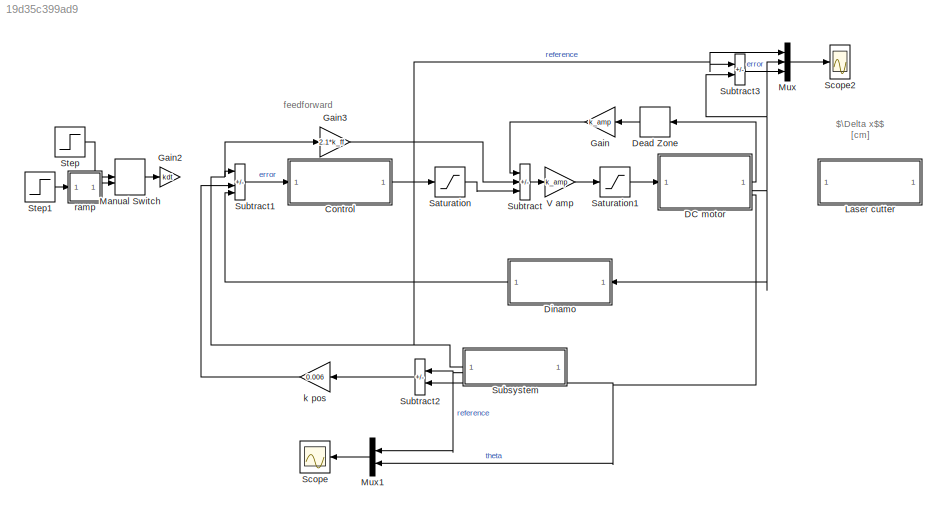
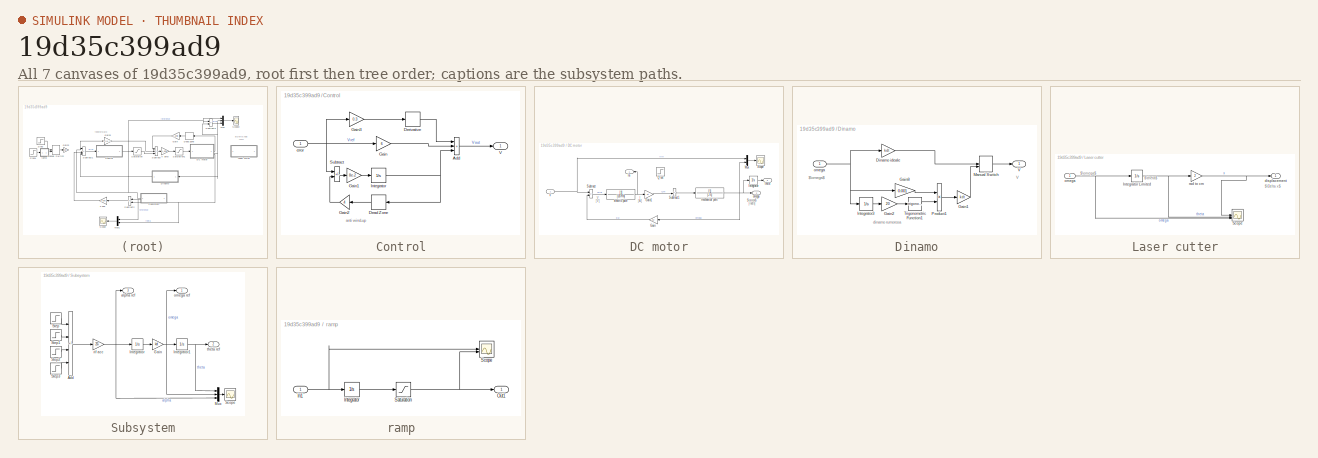
[diagram: thumbnail index - all 7 canvases of the model, root first then tree order]
MODEL slx_19d35c399ad9
KIND model
CONFIG AbsTol = auto
CONFIG EnableMultiTasking = off
CONFIG FixedStep = auto
CONFIG MaxStep = auto
CONFIG MinStep = auto
CONFIG RelTol = 1e-3
CONFIG SampleTimeConstraint = Unconstrained
CONFIG SolverName = VariableStepAuto
CONFIG StartTime = 0.0
CONFIG StopTime = 10
BLOCK [SubSystem] Control
BLOCK [Sum] Control/Add
  IconShape = rectangular
  Inputs = +++
BLOCK [DeadZone] Control/Dead Zone
  LowerValue = -2.32
  UpperValue = 2.32
BLOCK [Derivative] Control/Derivative
BLOCK [Gain] Control/Gain
  Gain = 6
BLOCK [Gain] Control/Gain1
  Gain = 8e-2
BLOCK [Gain] Control/Gain2
  Gain = 4
BLOCK [Gain] Control/Gain3
  Gain = 0.3
BLOCK [Integrator] Control/Integrator
  LimitOutput = on
  LowerSaturationLimit = -0.001
  UpperSaturationLimit = 0.01
BLOCK [Sum] Control/Subtract
  IconShape = rectangular
  Inputs = +-
BLOCK [Outport] Control/V
BLOCK [Inport] Control/error
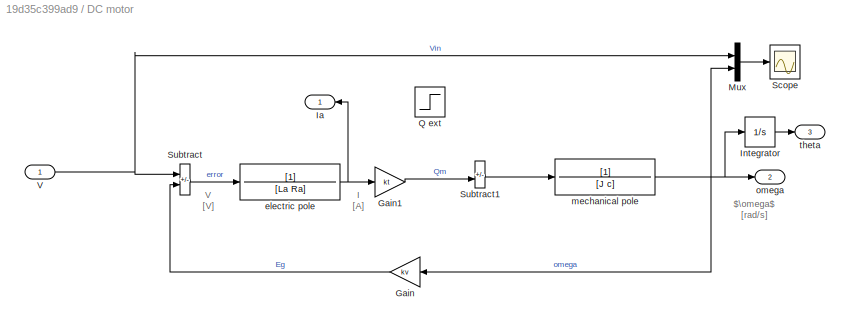
BLOCK [SubSystem] DC motor
BLOCK [Gain] DC motor/Gain
  Gain = kv
  NameLocation = top
BLOCK [Gain] DC motor/Gain1
  Gain = kt
BLOCK [Outport] DC motor/Ia
BLOCK [Integrator] DC motor/Integrator
BLOCK [Mux] DC motor/Mux
  DisplayOption = bar
  Inputs = 2
BLOCK [Step] DC motor/Q ext
  After = 0.03
  SampleTime = 0
  Time = 3
BLOCK [Scope] DC motor/Scope
  Floating = off
  NumInputPorts = 1
  ScopeSpecificationString = Simulink.scopes.TimeScopeBlockCfg('CurrentConfiguration', extmgr.ConfigurationSet(extmgr.Configuration('Core','General UI',true),extmgr.Configuration('Core','Source UI',true),extmgr.Configuration('Sources','WiredSimulink',true,'DataLoggingVariableName','ScopeData1'),extmgr.Configuration('Visuals','Time Domain',true,'SerializedDisplays',{struct('MinYLimReal','-5.82096','MaxYLimReal','48.64677','YLa...<+1615ch>
BLOCK [Sum] DC motor/Subtract
  IconShape = rectangular
  Inputs = +-
BLOCK [Sum] DC motor/Subtract1
  IconShape = rectangular
  Inputs = -+
BLOCK [Inport] DC motor/V
BLOCK [TransferFcn] DC motor/electric pole
  Denominator = [La Ra]
BLOCK [TransferFcn] DC motor/mechanical pole
  Denominator = [J c]
BLOCK [Outport] DC motor/omega
  Port = 2
BLOCK [Outport] DC motor/theta
  Port = 3
BLOCK [DeadZone] Dead Zone
  LowerValue = -2.273
  UpperValue = 2.273
BLOCK [SubSystem] Dinamo
BLOCK [Gain] Dinamo/Dinamo ideale
  Gain = kdt
  NameLocation = top
BLOCK [Gain] Dinamo/Gain1
  Gain = kdt
BLOCK [Gain] Dinamo/Gain2
  Gain = 20
  NameLocation = top
BLOCK [Gain] Dinamo/Gain8
  Gain = 0.001
  NameLocation = top
BLOCK [Integrator] Dinamo/Integrator3
  NameLocation = top
BLOCK [ManualSwitch] Dinamo/Manual Switch
  CurrentSetting = 0
BLOCK [Product] Dinamo/Product1
  NameLocation = top
  RndMeth = Zero
BLOCK [Trigonometry] Dinamo/Trigonometric Function1
  NameLocation = top
BLOCK [Outport] Dinamo/V
BLOCK [Inport] Dinamo/omega
BLOCK [Gain] Gain
  Gain = k_amp
BLOCK [Gain] Gain2
  Gain = kdt
BLOCK [Gain] Gain3
  Gain = 2.1*k_ff
BLOCK [SubSystem] Laser cutter
BLOCK [Integrator] Laser cutter/Integrator Limited
  LowerSaturationLimit = 0
  UpperSaturationLimit = 15
BLOCK [Scope] Laser cutter/Scope
  Floating = off
  NumInputPorts = 3
  ScopeSpecificationString = Simulink.scopes.TimeScopeBlockCfg('CurrentConfiguration', extmgr.ConfigurationSet(extmgr.Configuration('Core','General UI',true),extmgr.Configuration('Core','Source UI',true),extmgr.Configuration('Sources','WiredSimulink',true,'DataLoggingVariableName','ScopeData1'),extmgr.Configuration('Visuals','Time Domain',true,'SerializedDisplays',{struct('MinYLimReal','-8.80113','MaxYLimReal','79.21018','YLa...<+1454ch>
BLOCK [Outport] Laser cutter/displacement
BLOCK [Inport] Laser cutter/omega
BLOCK [Gain] Laser cutter/rad to cm
  Gain = 2
BLOCK [ManualSwitch] Manual Switch
BLOCK [Mux] Mux
  DisplayOption = bar
  Inputs = 3
BLOCK [Mux] Mux1
  DisplayOption = bar
  Inputs = 2
BLOCK [Saturate] Saturation
  LowerLimit = -36*1.2
  UpperLimit = 36*1.2
BLOCK [Saturate] Saturation1
  LowerLimit = -36*1.2
  UpperLimit = 36*1.2
BLOCK [Scope] Scope
  Floating = off
  NumInputPorts = 1
  ScopeSpecificationString = Simulink.scopes.TimeScopeBlockCfg('CurrentConfiguration', extmgr.ConfigurationSet(extmgr.Configuration('Core','General UI',true),extmgr.Configuration('Core','Source UI',true),extmgr.Configuration('Sources','WiredSimulink',true,'DataLoggingVariableName','ScopeData1'),extmgr.Configuration('Visuals','Time Domain',true,'SerializedDisplays',{struct('MinYLimReal','-2.89608','MaxYLimReal','26.06468','YLa...<+1454ch>
BLOCK [Scope] Scope2
  Floating = off
  NumInputPorts = 1
  ScopeSpecificationString = Simulink.scopes.TimeScopeBlockCfg('CurrentConfiguration', extmgr.ConfigurationSet(extmgr.Configuration('Core','General UI',true),extmgr.Configuration('Core','Source UI',true),extmgr.Configuration('Sources','WiredSimulink',true,'DataLoggingVariableName','ScopeData2'),extmgr.Configuration('Visuals','Time Domain',true,'SerializedDisplays',{struct('MinYLimReal','-1.68365','MaxYLimReal','8.70799','YLab...<+1560ch>
BLOCK [Step] Step
  After = 3
  NameLocation = left
  SampleTime = 0
BLOCK [Step] Step1
  After = 30
  SampleTime = 0
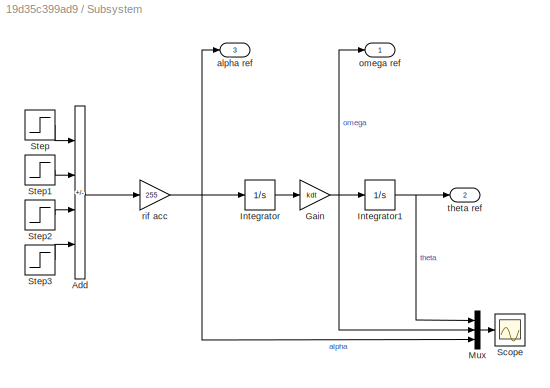
BLOCK [SubSystem] Subsystem
BLOCK [Sum] Subsystem/Add
  IconShape = rectangular
  Inputs = +--+
BLOCK [Gain] Subsystem/Gain
  Gain = kdt
BLOCK [Integrator] Subsystem/Integrator
BLOCK [Integrator] Subsystem/Integrator1
BLOCK [Mux] Subsystem/Mux
  DisplayOption = bar
  Inputs = 3
BLOCK [Scope] Subsystem/Scope
  Floating = off
  NumInputPorts = 1
  ScopeSpecificationString = Simulink.scopes.TimeScopeBlockCfg('CurrentConfiguration', extmgr.ConfigurationSet(extmgr.Configuration('Core','General UI',true),extmgr.Configuration('Core','Source UI',true),extmgr.Configuration('Sources','WiredSimulink',true,'DataLoggingVariableName','ScopeData1'),extmgr.Configuration('Visuals','Time Domain',true,'SerializedDisplays',{struct('MinYLimReal','-74.39338','MaxYLimReal','51.34191','YL...<+1486ch>
BLOCK [Step] Subsystem/Step
  SampleTime = 0
BLOCK [Step] Subsystem/Step1
  SampleTime = 0
  Time = 1.25
BLOCK [Step] Subsystem/Step2
  SampleTime = 0
  Time = 4
BLOCK [Step] Subsystem/Step3
  SampleTime = 0
  Time = 4.25
BLOCK [Outport] Subsystem/alpha ref
  Port = 3
BLOCK [Outport] Subsystem/omega ref
BLOCK [Gain] Subsystem/rif acc
  Gain = 255
BLOCK [Outport] Subsystem/theta ref
  Port = 2
BLOCK [Sum] Subtract
  IconShape = rectangular
  Inputs = -++
BLOCK [Sum] Subtract1
  IconShape = rectangular
  Inputs = +++-
BLOCK [Sum] Subtract2
  IconShape = rectangular
  Inputs = +-
BLOCK [Sum] Subtract3
  IconShape = rectangular
  Inputs = +-
BLOCK [Gain] V amp
  Gain = k_amp
BLOCK [Gain] k pos
  Gain = 0.006
BLOCK [SubSystem] ramp
BLOCK [Inport] ramp/In1
BLOCK [Integrator] ramp/Integrator
BLOCK [Outport] ramp/Out1
BLOCK [Saturate] ramp/Saturation
  LowerLimit = 0
  UpperLimit = 3
BLOCK [Scope] ramp/Scope
  Floating = off
  NumInputPorts = 2
  ScopeSpecificationString = Simulink.scopes.TimeScopeBlockCfg('CurrentConfiguration', extmgr.ConfigurationSet(extmgr.Configuration('Core','General UI',true),extmgr.Configuration('Core','Source UI',true),extmgr.Configuration('Sources','WiredSimulink',true,'DataLoggingVariableName','ScopeData3'),extmgr.Configuration('Visuals','Time Domain',true,'SerializedDisplays',{struct('MinYLimReal','-187.5','MaxYLimReal','1687.5','YLabelR...<+1488ch>
ANNOTATION (root): feedforward
ANNOTATION (root): $\Delta x$$ [cm]
ANNOTATION Control: anti wind-up
ANNOTATION DC motor: I [A]
ANNOTATION DC motor: V [V]
ANNOTATION DC motor: $\omega$ [rad/s]
ANNOTATION Dinamo: $\omega$
ANNOTATION Dinamo: V
ANNOTATION Dinamo: dinamo rumorosa
ANNOTATION Laser cutter: $\Delta x$
ANNOTATION Laser cutter: $\omega$
ANNOTATION Laser cutter: $\theta$
LINE Control/Add:1 -> Control/V:1
LINE Control/Dead Zone:1 -> Control/Gain2:1
LINE Control/Derivative:1 -> Control/Add:1
LINE Control/Gain1:1 -> Control/Integrator:1
LINE Control/Gain2:1 -> Control/Subtract:2
LINE Control/Gain3:1 -> Control/Derivative:1
LINE Control/Gain:1 -> Control/Add:2
NET Control/Integrator:1 -> Control/Add:3, Control/Dead Zone:1
LINE Control/Subtract:1 -> Control/Gain1:1
NET Control/error:1 -> Control/Gain3:1, Control/Gain:1, Control/Subtract:1
LINE Control:1 -> Saturation:1
LINE DC motor/Gain1:1 -> DC motor/Subtract1:2
LINE DC motor/Gain:1 -> DC motor/Subtract:2
LINE DC motor/Integrator:1 -> DC motor/theta:1
LINE DC motor/Mux:1 -> DC motor/Scope:1
LINE DC motor/Subtract1:1 -> DC motor/mechanical pole:1
LINE DC motor/Subtract:1 -> DC motor/electric pole:1
NET DC motor/V:1 -> DC motor/Mux:1, DC motor/Subtract:1
NET DC motor/electric pole:1 -> DC motor/Gain1:1, DC motor/Ia:1
NET DC motor/mechanical pole:1 -> DC motor/Gain:1, DC motor/Integrator:1, DC motor/Mux:2, DC motor/omega:1
LINE DC motor:1 -> Dead Zone:1
NET DC motor:2 -> Dinamo:1, Mux:2, Subtract3:2
NET DC motor:3 -> Mux1:2, Subtract2:2
LINE Dead Zone:1 -> Gain:1
LINE Dinamo/Dinamo ideale:1 -> Dinamo/Manual Switch:1
LINE Dinamo/Gain1:1 -> Dinamo/Manual Switch:2
LINE Dinamo/Gain2:1 -> Dinamo/Trigonometric Function1:1
LINE Dinamo/Gain8:1 -> Dinamo/Product1:1
LINE Dinamo/Integrator3:1 -> Dinamo/Gain2:1
LINE Dinamo/Manual Switch:1 -> Dinamo/V:1
LINE Dinamo/Product1:1 -> Dinamo/Gain1:1
LINE Dinamo/Trigonometric Function1:1 -> Dinamo/Product1:2
NET Dinamo/omega:1 -> Dinamo/Dinamo ideale:1, Dinamo/Gain8:1, Dinamo/Integrator3:1
LINE Dinamo:1 -> Subtract1:4
LINE Gain3:1 -> Subtract:2
LINE Gain:1 -> Subtract:1
NET Laser cutter/Integrator Limited:1 -> Laser cutter/Scope:2, Laser cutter/rad to cm:1
NET Laser cutter/omega:1 -> Laser cutter/Integrator Limited:1, Laser cutter/Scope:3
NET Laser cutter/rad to cm:1 -> Laser cutter/Scope:1, Laser cutter/displacement:1
LINE Manual Switch:1 -> Gain2:1
LINE Mux1:1 -> Scope:1
LINE Mux:1 -> Scope2:1
LINE Saturation1:1 -> DC motor:1
LINE Saturation:1 -> Subtract:3
LINE Step1:1 -> ramp:1
LINE Step:1 -> Manual Switch:1
LINE Subsystem/Add:1 -> Subsystem/rif acc:1
NET Subsystem/Gain:1 -> Subsystem/Integrator1:1, Subsystem/Mux:2, Subsystem/omega ref:1
NET Subsystem/Integrator1:1 -> Subsystem/Mux:1, Subsystem/theta ref:1
LINE Subsystem/Integrator:1 -> Subsystem/Gain:1
LINE Subsystem/Mux:1 -> Subsystem/Scope:1
LINE Subsystem/Step1:1 -> Subsystem/Add:2
LINE Subsystem/Step2:1 -> Subsystem/Add:3
LINE Subsystem/Step3:1 -> Subsystem/Add:4
LINE Subsystem/Step:1 -> Subsystem/Add:1
NET Subsystem/rif acc:1 -> Subsystem/Integrator:1, Subsystem/Mux:3, Subsystem/alpha ref:1
NET Subsystem:1 -> Gain3:1, Mux:1, Subtract1:1, Subtract3:1
NET Subsystem:2 -> Mux1:1, Subtract2:1
LINE Subtract1:1 -> Control:1
LINE Subtract2:1 -> k pos:1
LINE Subtract3:1 -> Mux:3
LINE Subtract:1 -> V amp:1
LINE V amp:1 -> Saturation1:1
LINE k pos:1 -> Subtract1:3
NET ramp/In1:1 -> ramp/Integrator:1, ramp/Scope:1
LINE ramp/Integrator:1 -> ramp/Saturation:1
NET ramp/Saturation:1 -> ramp/Out1:1, ramp/Scope:2
LINE ramp:1 -> Manual Switch:2
note: NET lines group one-source signal fan-out (src -> all destinations, sorted); 1:1 wires keep LINE
